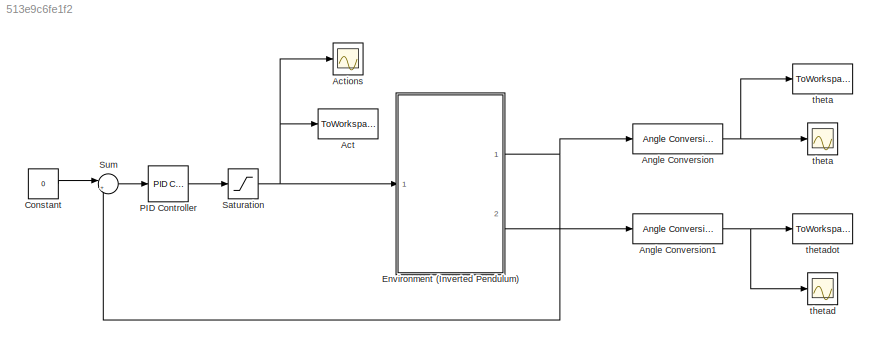
MODEL slx_513e9c6fe1f2
KIND model
CONFIG AbsTol = auto
CONFIG FixedStep = .001
CONFIG MaxStep = auto
CONFIG MinStep = auto
CONFIG RelTol = 1e-3
CONFIG SampleTimeConstraint = Unconstrained
CONFIG Solver = ode4
CONFIG SolverMode = Auto
CONFIG SolverName = ode4
CONFIG StartTime = 0.0
CONFIG StopTime = 10
BLOCK [ToWorkspace] Act
  FixptAsFi = on
  MaxDataPoints = inf
  Ports = [1]
  SampleTime = -1
  Save2DSignal = 3-D array (concatenate along third dimension)
  SaveFormat = Timeseries
  VariableName = Actor
BLOCK [Scope] Actions
  Ports = [1]
  ScopeSpecificationString = Simulink.scopes.TimeScopeBlockCfg('CurrentConfiguration', extmgr.ConfigurationSet(extmgr.Configuration('Core','General UI',true),extmgr.Configuration('Core','Source UI',true),extmgr.Configuration('Sources','WiredSimulink',true,'DataLoggingVariableName','ScopeData1'),extmgr.Configuration('Visuals','Time Domain',true,'SerializedDisplays',{struct('MinYLimReal','-0.125','MaxYLimReal','0.125','YLabelRe...<+1428ch>
BLOCK [Reference] Angle Conversion  REF=aerolibconvert2/Angle Conversion
  Ports = [1, 1]
  SourceBlock = aerolibconvert2/Angle Conversion
  SourceType = Angle Conversion
BLOCK [Reference] Angle Conversion1  REF=aerolibconvert2/Angle Conversion
  Ports = [1, 1]
  SourceBlock = aerolibconvert2/Angle Conversion
  SourceType = Angle Conversion
BLOCK [Constant] Constant
  Value = 0
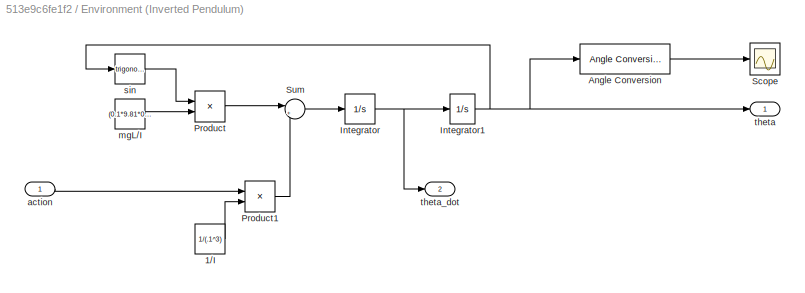
BLOCK [SubSystem] Environment (Inverted Pendulum)
  Ports = [1, 2]
  RequestExecContextInheritance = off
  Variant = off
BLOCK [Constant] Environment (Inverted Pendulum)/1//I
  Value = 1/(.1^3)
BLOCK [Reference] Environment (Inverted Pendulum)/Angle Conversion  REF=aerolibconvert2/Angle Conversion
  Ports = [1, 1]
  SourceBlock = aerolibconvert2/Angle Conversion
  SourceType = Angle Conversion
BLOCK [Integrator] Environment (Inverted Pendulum)/Integrator
  Ports = [1, 1]
BLOCK [Integrator] Environment (Inverted Pendulum)/Integrator1
  InitialCondition = xdistort
  Ports = [1, 1]
BLOCK [Product] Environment (Inverted Pendulum)/Product
  InputSameDT = off
  OutDataTypeStr = Inherit: Inherit via internal rule
  Ports = [2, 1]
  RndMeth = Floor
  SaturateOnIntegerOverflow = off
BLOCK [Product] Environment (Inverted Pendulum)/Product1
  InputSameDT = off
  OutDataTypeStr = Inherit: Inherit via internal rule
  Ports = [2, 1]
  RndMeth = Floor
  SaturateOnIntegerOverflow = off
BLOCK [Scope] Environment (Inverted Pendulum)/Scope
  Ports = [1]
  ScopeSpecificationString = Simulink.scopes.TimeScopeBlockCfg('CurrentConfiguration', extmgr.ConfigurationSet(extmgr.Configuration('Core','General UI',true),extmgr.Configuration('Core','Source UI',true),extmgr.Configuration('Sources','WiredSimulink',true),extmgr.Configuration('Visuals','Time Domain',true,'SerializedDisplays',{struct('MinYLimReal','-275.34491','MaxYLimReal','185.58486','YLabelReal','','MinYLimMag',' 0.00000',...<+1444ch>
BLOCK [Sum] Environment (Inverted Pendulum)/Sum
  IconShape = round
  InputSameDT = off
  Inputs = |++
  OutDataTypeStr = Inherit: Inherit via internal rule
  Ports = [2, 1]
  SaturateOnIntegerOverflow = off
BLOCK [Inport] Environment (Inverted Pendulum)/action
  IconDisplay = Port number
BLOCK [Constant] Environment (Inverted Pendulum)/mgL//I
  Value = (0.1*9.81*0.1)/(.1^3)
BLOCK [Trigonometry] Environment (Inverted Pendulum)/sin
  Ports = [1, 1]
BLOCK [Outport] Environment (Inverted Pendulum)/theta
  IconDisplay = Port number
BLOCK [Outport] Environment (Inverted Pendulum)/theta_dot
  IconDisplay = Port number
  Port = 2
BLOCK [Reference] PID Controller  REF=simulink/Continuous/PID Controller
  Ports = [1, 1]
  SourceBlock = simulink/Continuous/PID Controller
  SourceType = PID 1dof
BLOCK [Saturate] Saturation
  InputPortMap = u0
  LowerLimit = -0.1
  Ports = [1, 1]
  UpperLimit = 0.1
BLOCK [Sum] Sum
  IconShape = round
  InputSameDT = off
  Inputs = |+-
  OutDataTypeStr = Inherit: Inherit via internal rule
  Ports = [2, 1]
  SaturateOnIntegerOverflow = off
BLOCK [Scope] theta
  Ports = [1]
  ScopeSpecificationString = Simulink.scopes.TimeScopeBlockCfg('CurrentConfiguration', extmgr.ConfigurationSet(extmgr.Configuration('Core','General UI',true),extmgr.Configuration('Core','Source UI',true),extmgr.Configuration('Sources','WiredSimulink',true,'DataLoggingVariableName','ScopeData1'),extmgr.Configuration('Visuals','Time Domain',true,'SerializedDisplays',{struct('MinYLimReal','-148.96297','MaxYLimReal','166.82232','...<+1483ch>
BLOCK [ToWorkspace] theta 
  FixptAsFi = on
  MaxDataPoints = inf
  Ports = [1]
  SampleTime = -1
  Save2DSignal = 3-D array (concatenate along third dimension)
  SaveFormat = Timeseries
  VariableName = theta
BLOCK [Scope] thetad
  Ports = [1]
  ScopeSpecificationString = Simulink.scopes.TimeScopeBlockCfg('CurrentConfiguration', extmgr.ConfigurationSet(extmgr.Configuration('Core','General UI',true),extmgr.Configuration('Core','Source UI',true),extmgr.Configuration('Sources','WiredSimulink',true,'DataLoggingVariableName','ScopeData2'),extmgr.Configuration('Visuals','Time Domain',true,'SerializedDisplays',{struct('MinYLimReal','58.9242','MaxYLimReal','62.6305','YLabe...<+1469ch>
BLOCK [ToWorkspace] thetadot
  FixptAsFi = on
  MaxDataPoints = inf
  Ports = [1]
  SampleTime = -1
  Save2DSignal = 3-D array (concatenate along third dimension)
  SaveFormat = Timeseries
  VariableName = thetadot
NET Angle Conversion1:1 -> thetad:1, thetadot:1
NET Angle Conversion:1 -> theta :1, theta:1
LINE Constant:1 -> Sum:1
LINE Environment (Inverted Pendulum)/1//I:1 -> Environment (Inverted Pendulum)/Product1:2
LINE Environment (Inverted Pendulum)/Angle Conversion:1 -> Environment (Inverted Pendulum)/Scope:1
NET Environment (Inverted Pendulum)/Integrator1:1 -> Environment (Inverted Pendulum)/Angle Conversion:1, Environment (Inverted Pendulum)/sin:1, Environment (Inverted Pendulum)/theta:1
NET Environment (Inverted Pendulum)/Integrator:1 -> Environment (Inverted Pendulum)/Integrator1:1, Environment (Inverted Pendulum)/theta_dot:1
LINE Environment (Inverted Pendulum)/Product1:1 -> Environment (Inverted Pendulum)/Sum:2
LINE Environment (Inverted Pendulum)/Product:1 -> Environment (Inverted Pendulum)/Sum:1
LINE Environment (Inverted Pendulum)/Sum:1 -> Environment (Inverted Pendulum)/Integrator:1
LINE Environment (Inverted Pendulum)/action:1 -> Environment (Inverted Pendulum)/Product1:1
LINE Environment (Inverted Pendulum)/mgL//I:1 -> Environment (Inverted Pendulum)/Product:2
LINE Environment (Inverted Pendulum)/sin:1 -> Environment (Inverted Pendulum)/Product:1
NET Environment (Inverted Pendulum):1 -> Angle Conversion:1, Sum:2
LINE Environment (Inverted Pendulum):2 -> Angle Conversion1:1
LINE PID Controller:1 -> Saturation:1
NET Saturation:1 -> Act:1, Actions:1, Environment (Inverted Pendulum):1
LINE Sum:1 -> PID Controller:1
note: NET lines group one-source signal fan-out (src -> all destinations, sorted); 1:1 wires keep LINE
